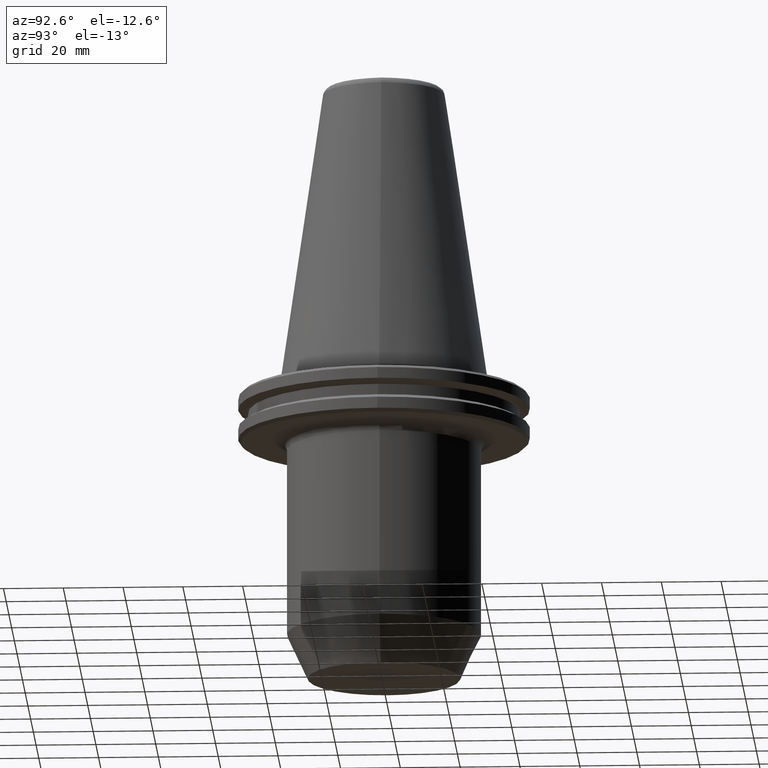
[diagram: clean part render]
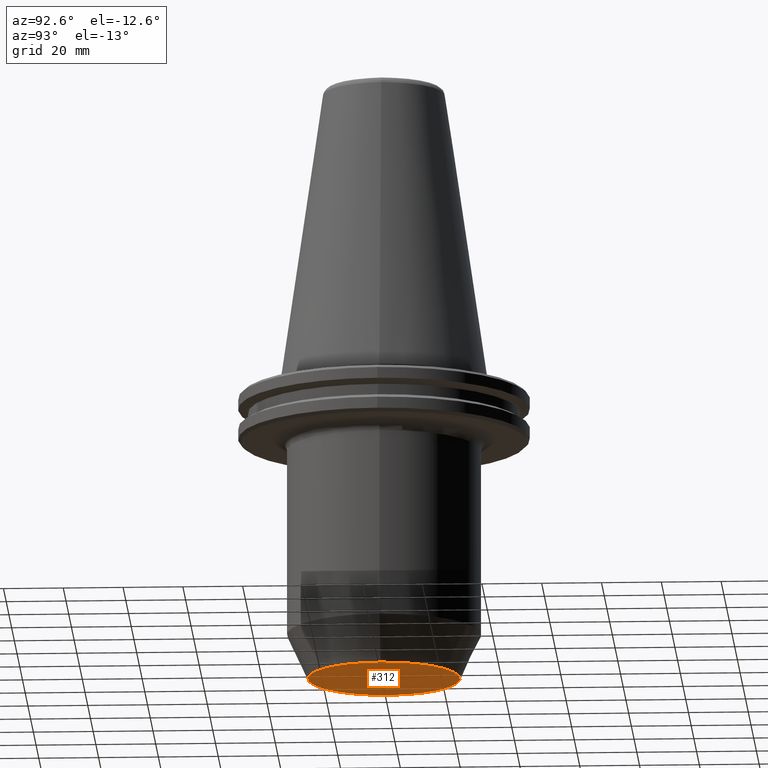
[diagram: same view with one face highlighted and labeled with its STEP entity id]
A machine part, auxiliary view. The second image highlights one B-rep face of the part: STEP entity #312.
In plain terms, the highlighted planar face has unit normal (0, -0, 1).
Its self-contained STEP definition (entity closure, byte-faithful):
#63 = EDGE_LOOP ( 'NONE', ( #122, #203 ) ) ;
#78 = EDGE_CURVE ( 'NONE', #505, #301, #750, .T. ) ;
#122 = ORIENTED_EDGE ( 'NONE', *, *, #78, .F. ) ;
#171 = AXIS2_PLACEMENT_3D ( 'NONE', #944, #366, #807 ) ;
#203 = ORIENTED_EDGE ( 'NONE', *, *, #500, .F. ) ;
#288 = CARTESIAN_POINT ( 'NONE',  ( 25.50000000000000000, 0.0000000000000000000, -100.0000000000000000 ) ) ;
#296 = AXIS2_PLACEMENT_3D ( 'NONE', #347, #387, #930 ) ;
#298 = DIRECTION ( 'NONE',  ( 1.000000000000000000, 0.0000000000000000000, 0.0000000000000000000 ) ) ;
#301 = VERTEX_POINT ( 'NONE', #515 ) ;
#312 = ADVANCED_FACE ( 'NONE', ( #556 ), #902, .F. ) ;
#327 = AXIS2_PLACEMENT_3D ( 'NONE', #977, #832, #298 ) ;
#347 = CARTESIAN_POINT ( 'NONE',  ( 0.0000000000000000000, 0.0000000000000000000, -100.0000000000000000 ) ) ;
#366 = DIRECTION ( 'NONE',  ( -0.0000000000000000000, -0.0000000000000000000, 1.000000000000000000 ) ) ;
#387 = DIRECTION ( 'NONE',  ( -0.0000000000000000000, -0.0000000000000000000, 1.000000000000000000 ) ) ;
#500 = EDGE_CURVE ( 'NONE', #301, #505, #605, .T. ) ;
#505 = VERTEX_POINT ( 'NONE', #288 ) ;
#515 = CARTESIAN_POINT ( 'NONE',  ( -25.50000000000000000, 3.551475717527324000E-015, -100.0000000000000000 ) ) ;
#556 = FACE_OUTER_BOUND ( 'NONE', #63, .T. ) ;
#605 = CIRCLE ( 'NONE', #171, 25.50000000000000000 ) ;
#750 = CIRCLE ( 'NONE', #296, 25.50000000000000000 ) ;
#807 = DIRECTION ( 'NONE',  ( 1.000000000000000000, 0.0000000000000000000, 0.0000000000000000000 ) ) ;
#832 = DIRECTION ( 'NONE',  ( 0.0000000000000000000, -0.0000000000000000000, 1.000000000000000000 ) ) ;
#902 = PLANE ( 'NONE',  #327 ) ;
#930 = DIRECTION ( 'NONE',  ( 1.000000000000000000, 0.0000000000000000000, 0.0000000000000000000 ) ) ;
#944 = CARTESIAN_POINT ( 'NONE',  ( 0.0000000000000000000, 0.0000000000000000000, -100.0000000000000000 ) ) ;
#977 = CARTESIAN_POINT ( 'NONE',  ( 0.0000000000000000000, 0.0000000000000000000, -100.0000000000000000 ) ) ;